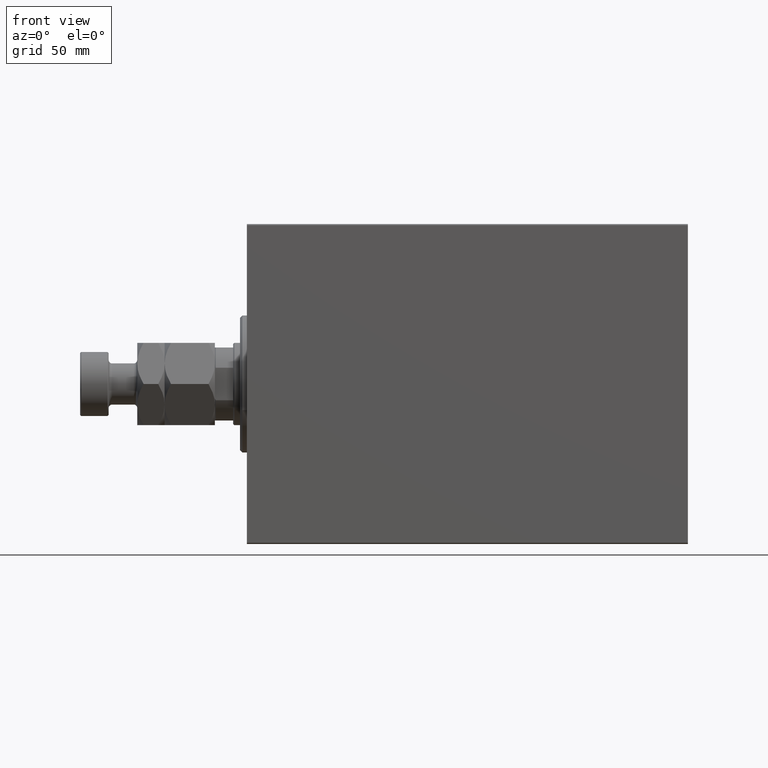
[diagram: clean part render]
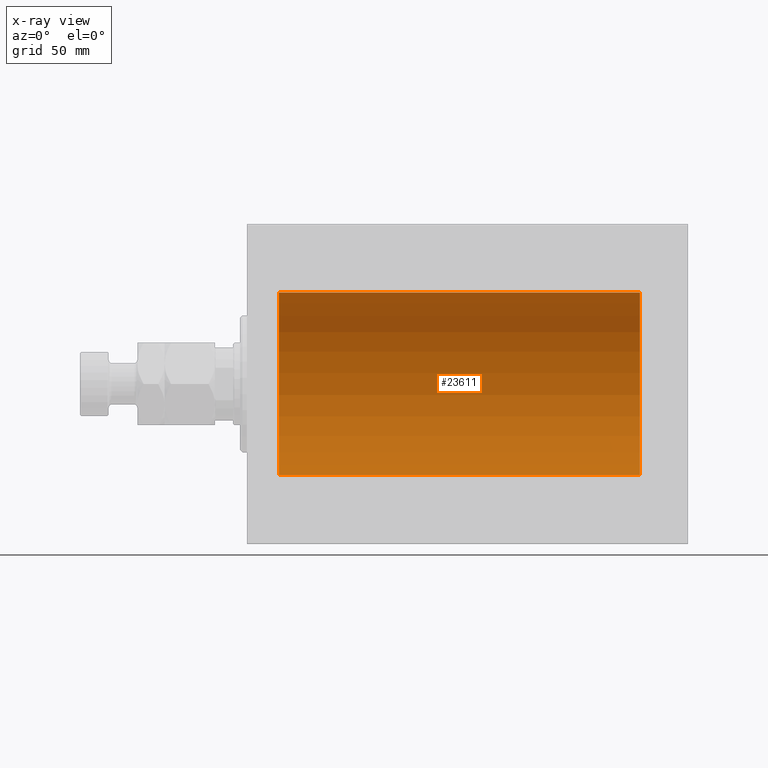
[diagram: x-ray — body ghosted, one internal face saturated and labeled with its STEP entity id]
A machine part, front view, then the same camera in x-ray: the body is ghosted and one INTERNAL B-rep face — a face not visible from any outside direction — is saturated and labeled: STEP entity #23611.
In plain terms, the highlighted cylindrical surface (partial cylindrical patch) has radius 40 mm, axis along (-1, -0, -0).
Its self-contained STEP definition (entity closure, byte-faithful):
#1102 = DIRECTION ( 'NONE',  ( 0.000000000000000000, 0.000000000000000000, 1.000000000000000000 ) ) ;
#4668 = CARTESIAN_POINT ( 'NONE',  ( 14.00000000000001243, 0.000000000000000000, 40.00000000000000000 ) ) ;
#7432 = VECTOR ( 'NONE', #27613, 1000.000000000000000 ) ;
#8567 = DIRECTION ( 'NONE',  ( -1.000000000000000000, 0.000000000000000000, 0.000000000000000000 ) ) ;
#14734 = FACE_OUTER_BOUND ( 'NONE', #14883, .T. ) ;
#14883 = EDGE_LOOP ( 'NONE', ( #43994, #27028, #28439, #35468 ) ) ;
#15516 = CARTESIAN_POINT ( 'NONE',  ( 14.00000000000001243, 4.898587196589413026E-15, -40.00000000000000000 ) ) ;
#16802 = CARTESIAN_POINT ( 'NONE',  ( 172.0000000000000000, 4.898587196589413026E-15, -40.00000000000000000 ) ) ;
#19021 = CARTESIAN_POINT ( 'NONE',  ( 172.0000000000000000, 0.000000000000000000, 40.00000000000000000 ) ) ;
#19091 = DIRECTION ( 'NONE',  ( 0.000000000000000000, 0.000000000000000000, 1.000000000000000000 ) ) ;
#19363 = CARTESIAN_POINT ( 'NONE',  ( 172.0000000000000000, 0.000000000000000000, 0.000000000000000000 ) ) ;
#21059 = AXIS2_PLACEMENT_3D ( 'NONE', #25332, #25784, #19091 ) ;
#21600 = CARTESIAN_POINT ( 'NONE',  ( 14.00000000000001243, 0.000000000000000000, 0.000000000000000000 ) ) ;
#21623 = EDGE_CURVE ( 'NONE', #39751, #45545, #38282, .T. ) ;
#22855 = AXIS2_PLACEMENT_3D ( 'NONE', #21600, #35646, #1102 ) ;
#23611 = ADVANCED_FACE ( 'NONE', ( #14734 ), #28782, .F. ) ;
#23971 = CIRCLE ( 'NONE', #32048, 40.00000000000000000 ) ;
#24615 = LINE ( 'NONE', #16802, #7432 ) ;
#25332 = CARTESIAN_POINT ( 'NONE',  ( 172.0000000000000000, 0.000000000000000000, 0.000000000000000000 ) ) ;
#25784 = DIRECTION ( 'NONE',  ( -1.000000000000000000, -0.000000000000000000, -0.000000000000000000 ) ) ;
#26551 = EDGE_CURVE ( 'NONE', #39751, #40478, #23971, .T. ) ;
#27028 = ORIENTED_EDGE ( 'NONE', *, *, #26551, .F. ) ;
#27613 = DIRECTION ( 'NONE',  ( -1.000000000000000000, -0.000000000000000000, -0.000000000000000000 ) ) ;
#28439 = ORIENTED_EDGE ( 'NONE', *, *, #21623, .T. ) ;
#28782 = CYLINDRICAL_SURFACE ( 'NONE', #21059, 40.00000000000000000 ) ;
#30195 = CIRCLE ( 'NONE', #22855, 40.00000000000000000 ) ;
#32048 = AXIS2_PLACEMENT_3D ( 'NONE', #19363, #8567, #36652 ) ;
#34289 = VERTEX_POINT ( 'NONE', #15516 ) ;
#35468 = ORIENTED_EDGE ( 'NONE', *, *, #40178, .T. ) ;
#35646 = DIRECTION ( 'NONE',  ( -1.000000000000000000, 0.000000000000000000, 0.000000000000000000 ) ) ;
#36652 = DIRECTION ( 'NONE',  ( 0.000000000000000000, 0.000000000000000000, 1.000000000000000000 ) ) ;
#37166 = VECTOR ( 'NONE', #38059, 1000.000000000000000 ) ;
#38059 = DIRECTION ( 'NONE',  ( -1.000000000000000000, -0.000000000000000000, -0.000000000000000000 ) ) ;
#38282 = LINE ( 'NONE', #41731, #37166 ) ;
#39751 = VERTEX_POINT ( 'NONE', #19021 ) ;
#40024 = EDGE_CURVE ( 'NONE', #40478, #34289, #24615, .T. ) ;
#40178 = EDGE_CURVE ( 'NONE', #45545, #34289, #30195, .T. ) ;
#40478 = VERTEX_POINT ( 'NONE', #45500 ) ;
#41731 = CARTESIAN_POINT ( 'NONE',  ( 172.0000000000000000, 0.000000000000000000, 40.00000000000000000 ) ) ;
#43994 = ORIENTED_EDGE ( 'NONE', *, *, #40024, .F. ) ;
#45500 = CARTESIAN_POINT ( 'NONE',  ( 172.0000000000000000, 4.898587196589413026E-15, -40.00000000000000000 ) ) ;
#45545 = VERTEX_POINT ( 'NONE', #4668 ) ;